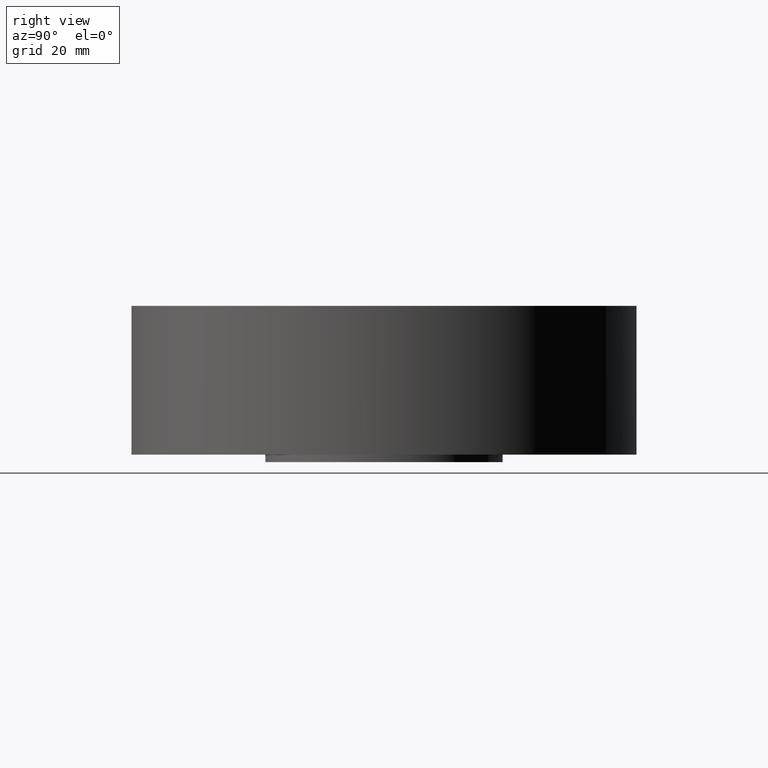
[diagram: clean part render]
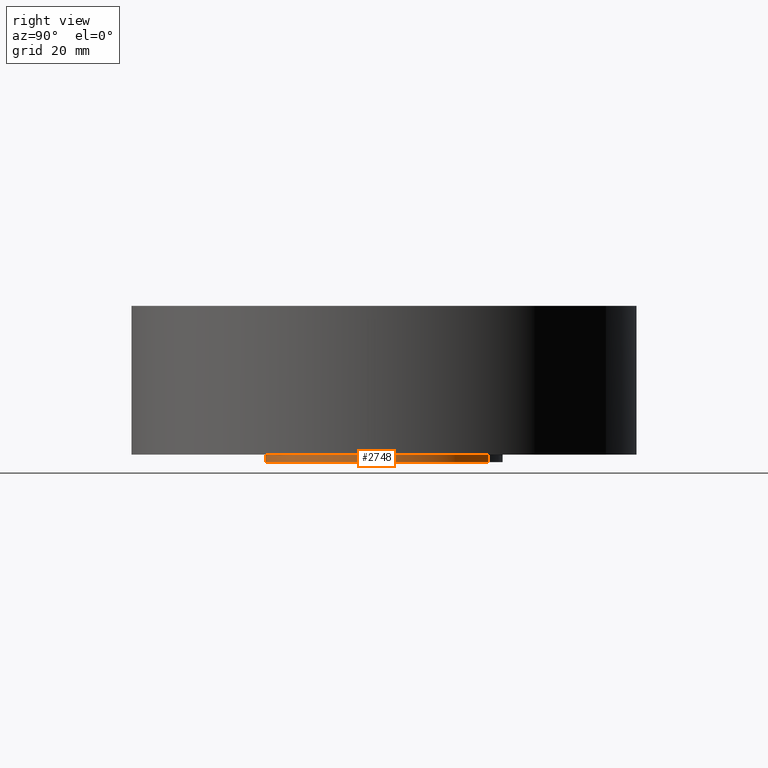
[diagram: same view with one face highlighted and labeled with its STEP entity id]
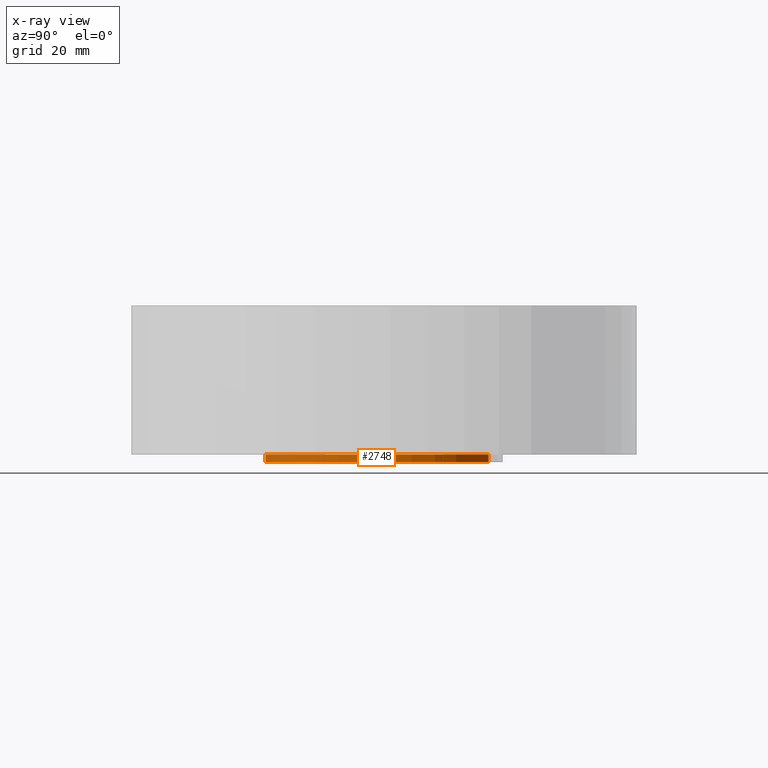
[diagram: x-ray of the same camera — body ghosted, the highlighted face saturated]
A machine part, right view. The second image highlights one B-rep face of the part: STEP entity #2748.
The next image is the same camera in x-ray: the body ghosted, the highlighted face saturated — about 0% of this face is hidden behind the body in this view.
In plain terms, the highlighted cylindrical surface (partial cylindrical patch) has radius 25.4 mm, axis along (0, 0, -1).
Its self-contained STEP definition (entity closure, byte-faithful):
#2578=AXIS2_PLACEMENT_3D('Circle Axis2P3D',#2576,#2577,$) ;
#2721=AXIS2_PLACEMENT_3D('Cylinder Axis2P3D',#2718,#2719,#2720) ;
#2725=AXIS2_PLACEMENT_3D('Circle Axis2P3D',#2723,#2724,$) ;
#2576=CARTESIAN_POINT('Axis2P3D Location',(0.,0.,0.)) ;
#2580=CARTESIAN_POINT('Vertex',(0.479425538606,0.877582561894,-2.86734765415E-014)) ;
#2582=CARTESIAN_POINT('Vertex',(-0.479425538606,-0.877582561894,-2.86734765415E-014)) ;
#2718=CARTESIAN_POINT('Axis2P3D Location',(0.,0.,0.593750000002)) ;
#2723=CARTESIAN_POINT('Axis2P3D Location',(0.,0.,-0.0625000000003)) ;
#2727=CARTESIAN_POINT('Vertex',(0.479425538606,0.877582561894,-0.0625000000003)) ;
#2729=CARTESIAN_POINT('Vertex',(-0.479425538606,-0.877582561894,-0.0625000000003)) ;
#2732=CARTESIAN_POINT('Line Origine',(0.479425538606,0.877582561894,-0.0312500000002)) ;
#2737=CARTESIAN_POINT('Line Origine',(-0.479425538606,-0.877582561894,-0.0312500000002)) ;
#2577=DIRECTION('Axis2P3D Direction',(0.,0.,-0.0393700787402)) ;
#2719=DIRECTION('Axis2P3D Direction',(0.,0.,-0.0393700787402)) ;
#2720=DIRECTION('Axis2P3D XDirection',(-0.0188750212049,-0.0345504945626,0.)) ;
#2724=DIRECTION('Axis2P3D Direction',(0.,0.,-0.0393700787402)) ;
#2733=DIRECTION('Vector Direction',(0.,0.,-0.0393700787402)) ;
#2738=DIRECTION('Vector Direction',(0.,0.,-0.0393700787402)) ;
#2734=VECTOR('Line Direction',#2733,0.0393700787402) ;
#2739=VECTOR('Line Direction',#2738,0.0393700787402) ;
#2743=ORIENTED_EDGE('',*,*,#2731,.F.) ;
#2744=ORIENTED_EDGE('',*,*,#2736,.T.) ;
#2745=ORIENTED_EDGE('',*,*,#2584,.T.) ;
#2746=ORIENTED_EDGE('',*,*,#2741,.F.) ;
#2748=ADVANCED_FACE('PartBody',(#2747),#2722,.T.) ;
#2579=CIRCLE('generated circle',#2578,1.) ;
#2726=CIRCLE('generated circle',#2725,1.) ;
#2722=CYLINDRICAL_SURFACE('generated cylinder',#2721,1.) ;
#2584=EDGE_CURVE('',#2581,#2583,#2579,.T.) ;
#2731=EDGE_CURVE('',#2728,#2730,#2726,.T.) ;
#2736=EDGE_CURVE('',#2728,#2581,#2735,.F.) ;
#2741=EDGE_CURVE('',#2730,#2583,#2740,.F.) ;
#2742=EDGE_LOOP('',(#2743,#2744,#2745,#2746)) ;
#2747=FACE_OUTER_BOUND('',#2742,.T.) ;
#2735=LINE('Line',#2732,#2734) ;
#2740=LINE('Line',#2737,#2739) ;
#2581=VERTEX_POINT('',#2580) ;
#2583=VERTEX_POINT('',#2582) ;
#2728=VERTEX_POINT('',#2727) ;
#2730=VERTEX_POINT('',#2729) ;